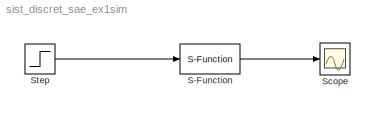
MODEL sist_discret_sae_ex1sim
KIND model
BLOCK [S-Function] S-Function
  EnableBusSupport = off
  FunctionName = sist_discret_sae_ex1
  Ports = [1, 1]
  SID = 1
BLOCK [Scope] Scope
  DataFormat = StructureWithTime
  Floating = off
  NumInputPorts = 1
  Ports = [1]
  SID = 2
  SampleTime = 0
  ShowLegends = off
BLOCK [Step] Step
  MaskIconFrame = on
  MaskIconOpaque = on
  MaskIconRotate = none
  MaskIconUnits = autoscale
  MaskInitialization = %zoh
  MaskPortRotate = default
  MaskType = DiscretizedSource
  SID = 4
  SampleTime = 1.0
  ZeroCross = off
LINE S-Function:1 -> Scope:1
LINE Step:1 -> S-Function:1
